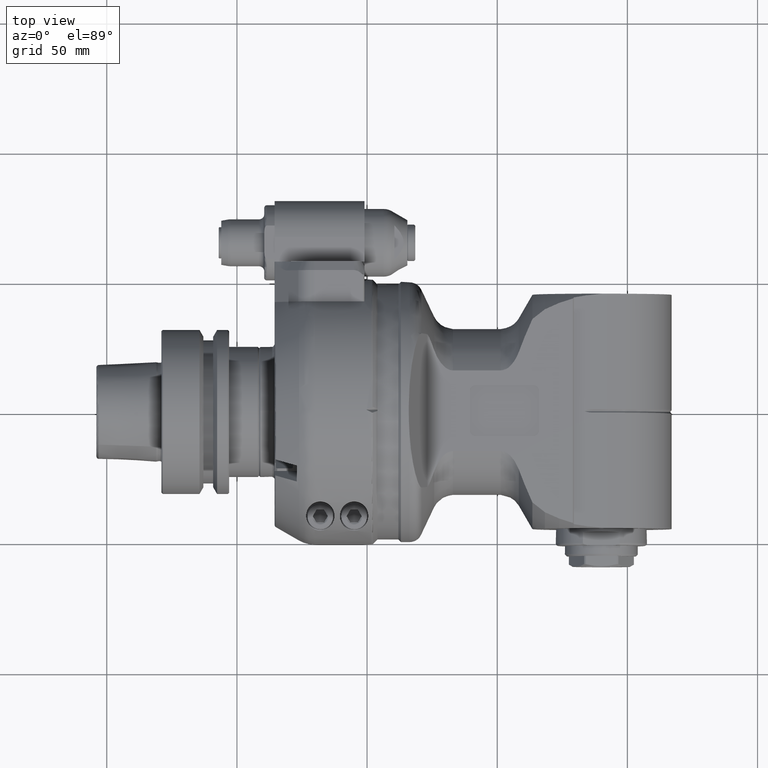
[diagram: clean part render]
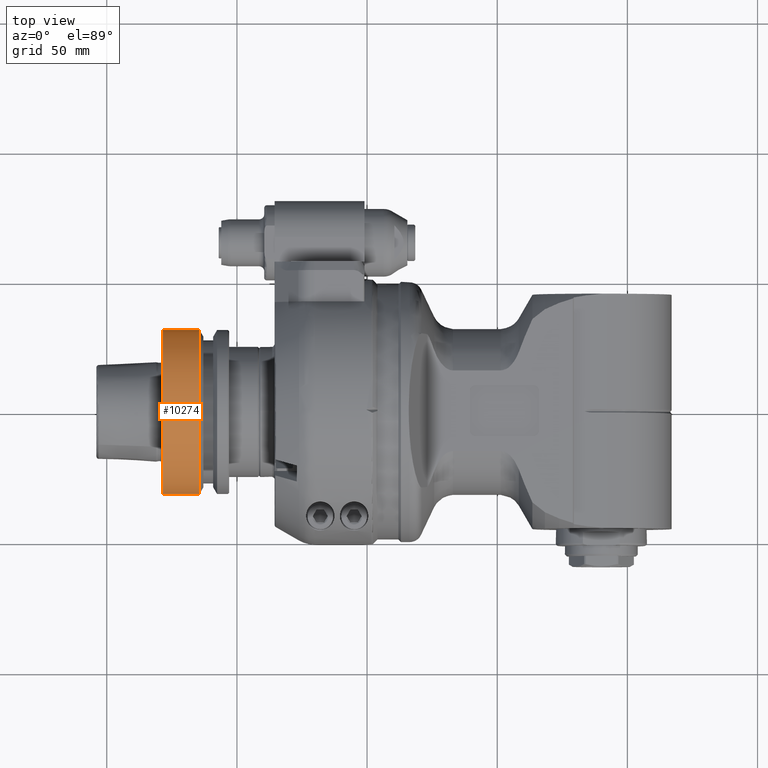
[diagram: same view with one face highlighted and labeled with its STEP entity id]
A machine part, top view. The second image highlights one B-rep face of the part: STEP entity #10274.
In plain terms, the highlighted cylindrical surface (bore or boss wall) has radius 31.5 mm, axis along (-1, 0, 0).
Its self-contained STEP definition (entity closure, byte-faithful):
#863=LINE('',#20947,#1503);
#1503=VECTOR('',#14025,31.5);
#1789=CYLINDRICAL_SURFACE('',#11374,31.5);
#2592=FACE_OUTER_BOUND('',#3243,.T.);
#3243=EDGE_LOOP('',(#8922,#8923,#8924,#8925,#8926,#8927));
#3910=CIRCLE('',#11372,31.5);
#3911=CIRCLE('',#11373,31.5);
#3912=CIRCLE('',#11375,31.5);
#3913=CIRCLE('',#11376,31.5);
#4884=VERTEX_POINT('',#20938);
#4885=VERTEX_POINT('',#20939);
#4886=VERTEX_POINT('',#20944);
#4887=VERTEX_POINT('',#20945);
#6293=EDGE_CURVE('',#4884,#4885,#3910,.T.);
#6295=EDGE_CURVE('',#4885,#4884,#3911,.T.);
#6296=EDGE_CURVE('',#4886,#4887,#3912,.T.);
#6297=EDGE_CURVE('',#4886,#4885,#863,.T.);
#6298=EDGE_CURVE('',#4887,#4886,#3913,.T.);
#8922=ORIENTED_EDGE('',*,*,#6296,.F.);
#8923=ORIENTED_EDGE('',*,*,#6297,.T.);
#8924=ORIENTED_EDGE('',*,*,#6293,.F.);
#8925=ORIENTED_EDGE('',*,*,#6295,.F.);
#8926=ORIENTED_EDGE('',*,*,#6297,.F.);
#8927=ORIENTED_EDGE('',*,*,#6298,.F.);
#10274=ADVANCED_FACE('',(#2592),#1789,.T.);
#11372=AXIS2_PLACEMENT_3D('',#20940,#14016,#14017);
#11373=AXIS2_PLACEMENT_3D('',#20942,#14019,#14020);
#11374=AXIS2_PLACEMENT_3D('',#20943,#14021,#14022);
#11375=AXIS2_PLACEMENT_3D('',#20946,#14023,#14024);
#11376=AXIS2_PLACEMENT_3D('',#20948,#14026,#14027);
#14016=DIRECTION('center_axis',(1.,0.,0.));
#14017=DIRECTION('ref_axis',(0.,1.,0.));
#14019=DIRECTION('center_axis',(1.,0.,0.));
#14020=DIRECTION('ref_axis',(0.,1.,0.));
#14021=DIRECTION('center_axis',(-1.,0.,0.));
#14022=DIRECTION('ref_axis',(0.,1.,0.));
#14023=DIRECTION('center_axis',(-1.,0.,0.));
#14024=DIRECTION('ref_axis',(0.,-1.,0.));
#14025=DIRECTION('',(1.,0.,0.));
#14026=DIRECTION('center_axis',(-1.,0.,0.));
#14027=DIRECTION('ref_axis',(0.,-1.,0.));
#20938=CARTESIAN_POINT('',(-64.37749907476,31.5,0.));
#20939=CARTESIAN_POINT('',(-64.3774990747579,-31.5000000000012,3.85763741731431E-15));
#20940=CARTESIAN_POINT('Origin',(-64.37749907476,0.,0.));
#20942=CARTESIAN_POINT('Origin',(-64.37749907476,0.,0.));
#20943=CARTESIAN_POINT('Origin',(-50.9,0.,0.));
#20944=CARTESIAN_POINT('',(-78.5,-31.5,0.));
#20945=CARTESIAN_POINT('',(-78.5,31.5,3.85763741731416E-15));
#20946=CARTESIAN_POINT('Origin',(-78.5,0.,0.));
#20947=CARTESIAN_POINT('',(-50.9,-31.5,3.85763741731416E-15));
#20948=CARTESIAN_POINT('Origin',(-78.5,0.,0.));